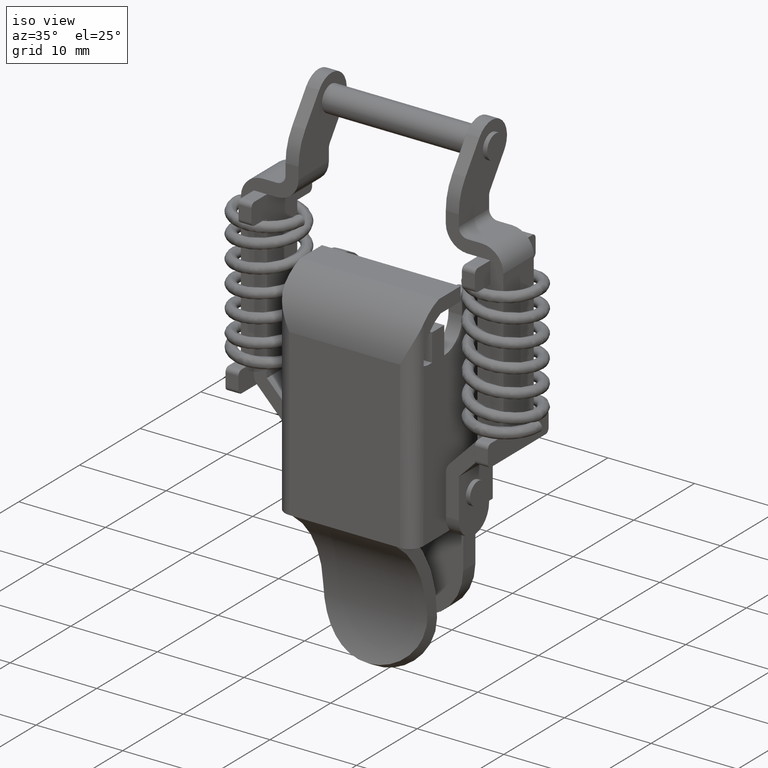
[diagram: clean part render]
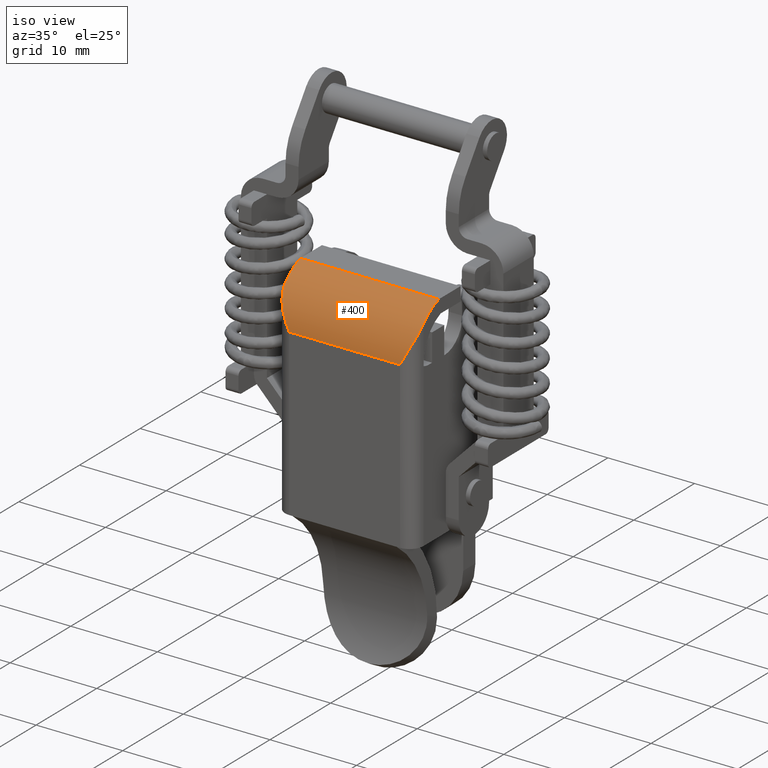
[diagram: same view with one face highlighted and labeled with its STEP entity id]
A machine part, iso view. The second image highlights one B-rep face of the part: STEP entity #400.
In plain terms, the highlighted cylindrical surface (partial cylindrical patch) has radius 6 mm, axis along (1, 0, 0).
Its self-contained STEP definition (entity closure, byte-faithful):
#400=ADVANCED_FACE('',(#1893),#1892,.T.);
#1892=CYLINDRICAL_SURFACE('',#3411,6.00000000000E+00);
#1893=FACE_OUTER_BOUND('',#3412,.T.);
#3408=CARTESIAN_POINT('',(9.92000000000E+02,-1.69108641419E+00,-5.70000000000E+00));
#3409=DIRECTION('',(1.00000000000E+00,-0.00000000000E+00,-0.00000000000E+00));
#3410=DIRECTION('',(-0.00000000000E+00,-0.00000000000E+00,-1.00000000000E+00));
#3411=AXIS2_PLACEMENT_3D('',#3408,#3409,#3410);
#3412=EDGE_LOOP('',(#6656,#6657,#6658,#6659,#6660,#6661));
#6656=ORIENTED_EDGE('',*,*,#7440,.F.);
#6657=ORIENTED_EDGE('',*,*,#7441,.T.);
#6658=ORIENTED_EDGE('',*,*,#7442,.T.);
#6659=ORIENTED_EDGE('',*,*,#7443,.T.);
#6660=ORIENTED_EDGE('',*,*,#7444,.F.);
#6661=ORIENTED_EDGE('',*,*,#7445,.T.);
#7440=EDGE_CURVE('',#10146,#10147,#10148,.T.);
#7441=EDGE_CURVE('',#10146,#10154,#10155,.T.);
#7442=EDGE_CURVE('',#10154,#10161,#10162,.T.);
#7443=EDGE_CURVE('',#10161,#10168,#10169,.T.);
#7444=EDGE_CURVE('',#10175,#10168,#10176,.T.);
#7445=EDGE_CURVE('',#10175,#10147,#10182,.T.);
#10146=VERTEX_POINT('',#13010);
#10147=VERTEX_POINT('',#13011);
#10148=LINE('',#13012,#13013);
#10154=VERTEX_POINT('',#13015);
#10155=(BOUNDED_CURVE() B_SPLINE_CURVE(3,(#13016,#13017,#13018,#13019,#13020,#13021,#13022,#13023,#13024,#13025,#13026,#13027),.UNSPECIFIED.,.F.,.F.) B_SPLINE_CURVE_WITH_KNOTS((4,2,2,2,2,4),(-4.79533828813E-03,-4.19592100211E-03,-3.59650371609E-03,-2.39766914406E-03,-1.19883457203E-03,-1.22663473335E-18),.UNSPECIFIED.) CURVE() GEOMETRIC_REPRESENTATION_ITEM() RATIONAL_B_SPLINE_CURVE((1.00000000000E+00,1.00000000000E+00,1.00000000000E+00,1.00000000000E+00,1.00000000000E+00,1.00000000000E+00,1.00000000000E+00,1.00000000000E+00,1.00000000000E+00,1.00000000000E+00,1.00000000000E+00,1.00000000000E+00)) REPRESENTATION_ITEM('') );
#10161=VERTEX_POINT('',#13028);
#10162=CIRCLE('',#13032,6.00000000000E+00);
#10168=VERTEX_POINT('',#13033);
#10169=LINE('',#13034,#13035);
#10175=VERTEX_POINT('',#13037);
#10176=CIRCLE('',#13041,6.00000000000E+00);
#10182=(BOUNDED_CURVE() B_SPLINE_CURVE(3,(#13042,#13043,#13044,#13045,#13046,#13047,#13048,#13049,#13050,#13051,#13052,#13053),.UNSPECIFIED.,.F.,.F.) B_SPLINE_CURVE_WITH_KNOTS((4,2,2,2,2,4),(1.22663473335E-18,1.19883457203E-03,2.39766914406E-03,3.59650371609E-03,4.19592100211E-03,4.79533828813E-03),.UNSPECIFIED.) CURVE() GEOMETRIC_REPRESENTATION_ITEM() RATIONAL_B_SPLINE_CURVE((1.00000000000E+00,1.00000000000E+00,1.00000000000E+00,1.00000000000E+00,1.00000000000E+00,1.00000000000E+00,1.00000000000E+00,1.00000000000E+00,1.00000000000E+00,1.00000000000E+00,1.00000000000E+00,1.00000000000E+00)) REPRESENTATION_ITEM('') );
#13010=CARTESIAN_POINT('',(6.40000000000E+00,-7.69108641419E+00,-5.70000000000E+00));
#13011=CARTESIAN_POINT('',(-6.40000000000E+00,-7.69108641419E+00,-5.70000000000E+00));
#13012=CARTESIAN_POINT('',(6.40000000000E+00,-7.69108641419E+00,-5.70000000000E+00));
#13013=VECTOR('',#13014,1.28000000000E+01);
#13014=DIRECTION('',(-1.00000000000E+00,0.00000000000E+00,0.00000000000E+00));
#13015=CARTESIAN_POINT('',(8.00000000000E+00,-6.09108641419E+00,-1.62078438913E+00));
#13016=CARTESIAN_POINT('',(6.40000000000E+00,-7.69108641419E+00,-5.70000000000E+00));
#13017=CARTESIAN_POINT('',(6.49167708779E+00,-7.69108641419E+00,-5.52246776187E+00));
#13018=CARTESIAN_POINT('',(6.58417057713E+00,-7.68312409672E+00,-5.34335520072E+00));
#13019=CARTESIAN_POINT('',(6.76584707086E+00,-7.65142570576E+00,-4.98861639669E+00));
#13020=CARTESIAN_POINT('',(6.85564508561E+00,-7.62769359890E+00,-4.81181410447E+00));
#13021=CARTESIAN_POINT('',(7.11993075254E+00,-7.53219572587E+00,-4.28219951631E+00));
#13022=CARTESIAN_POINT('',(7.29060719336E+00,-7.43524717519E+00,-3.92778857894E+00));
#13023=CARTESIAN_POINT('',(7.59390520976E+00,-7.17484823045E+00,-3.23738502570E+00));
#13024=CARTESIAN_POINT('',(7.72826737503E+00,-7.01180340077E+00,-2.89956982599E+00));
#13025=CARTESIAN_POINT('',(7.93261998663E+00,-6.60400937679E+00,-2.23364364578E+00));
#13026=CARTESIAN_POINT('',(8.00000000000E+00,-6.36672019593E+00,-1.91809366507E+00));
#13027=CARTESIAN_POINT('',(8.00000000000E+00,-6.09108641419E+00,-1.62078438913E+00));
#13028=CARTESIAN_POINT('',(8.00000000000E+00,-3.56458581371E+00,0.00000000000E+00));
#13029=CARTESIAN_POINT('',(8.00000000000E+00,-1.69108641419E+00,-5.70000000000E+00));
#13030=DIRECTION('',(-1.00000000000E+00,0.00000000000E+00,0.00000000000E+00));
#13031=DIRECTION('',(-0.00000000000E+00,-0.00000000000E+00,-1.00000000000E+00));
#13032=AXIS2_PLACEMENT_3D('',#13029,#13030,#13031);
#13033=CARTESIAN_POINT('',(-8.00000000000E+00,-3.56458581371E+00,0.00000000000E+00));
#13034=CARTESIAN_POINT('',(8.00000000000E+00,-3.56458581371E+00,0.00000000000E+00));
#13035=VECTOR('',#13036,1.60000000000E+01);
#13036=DIRECTION('',(-1.00000000000E+00,0.00000000000E+00,0.00000000000E+00));
#13037=CARTESIAN_POINT('',(-8.00000000000E+00,-6.09108641419E+00,-1.62078438913E+00));
#13038=CARTESIAN_POINT('',(-8.00000000000E+00,-1.69108641419E+00,-5.70000000000E+00));
#13039=DIRECTION('',(-1.00000000000E+00,0.00000000000E+00,0.00000000000E+00));
#13040=DIRECTION('',(-0.00000000000E+00,-0.00000000000E+00,-1.00000000000E+00));
#13041=AXIS2_PLACEMENT_3D('',#13038,#13039,#13040);
#13042=CARTESIAN_POINT('',(-8.00000000000E+00,-6.09108641419E+00,-1.62078438913E+00));
#13043=CARTESIAN_POINT('',(-8.00000000000E+00,-6.36672019593E+00,-1.91809366507E+00));
#13044=CARTESIAN_POINT('',(-7.93261998663E+00,-6.60400937679E+00,-2.23364364578E+00));
#13045=CARTESIAN_POINT('',(-7.72826737503E+00,-7.01180340077E+00,-2.89956982599E+00));
#13046=CARTESIAN_POINT('',(-7.59390520976E+00,-7.17484823045E+00,-3.23738502570E+00));
#13047=CARTESIAN_POINT('',(-7.29060719336E+00,-7.43524717519E+00,-3.92778857894E+00));
#13048=CARTESIAN_POINT('',(-7.11993075254E+00,-7.53219572587E+00,-4.28219951631E+00));
#13049=CARTESIAN_POINT('',(-6.85564508561E+00,-7.62769359890E+00,-4.81181410447E+00));
#13050=CARTESIAN_POINT('',(-6.76584707086E+00,-7.65142570576E+00,-4.98861639669E+00));
#13051=CARTESIAN_POINT('',(-6.58417057713E+00,-7.68312409672E+00,-5.34335520072E+00));
#13052=CARTESIAN_POINT('',(-6.49167708779E+00,-7.69108641419E+00,-5.52246776187E+00));
#13053=CARTESIAN_POINT('',(-6.40000000000E+00,-7.69108641419E+00,-5.70000000000E+00));